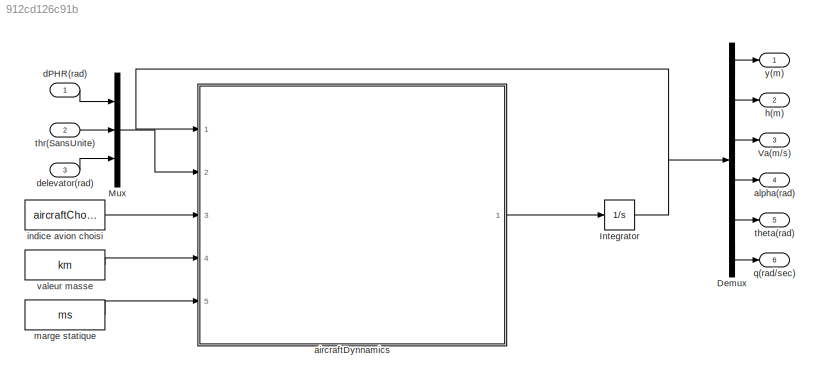
MODEL slx_912cd126c91b
KIND model
CONFIG AbsTol = auto
CONFIG EnableMultiTasking = on
CONFIG FixedStep = auto
CONFIG MaxStep = 1e-3
CONFIG MinStep = auto
CONFIG RelTol = 1e-3
CONFIG SampleTimeConstraint = Unconstrained
CONFIG Solver = ode45
CONFIG SolverName = ode45
CONFIG StartTime = 0.0
CONFIG StopTime = 100.0
BLOCK [Demux] Demux
  DisplayOption = bar
  Outputs = 6
  Ports = [1, 6]
BLOCK [Integrator] Integrator
  InitialCondition = xTrim
  Ports = [1, 1]
BLOCK [Mux] Mux
  DisplayOption = bar
  Inputs = 3
  Ports = [3, 1]
BLOCK [Outport] Va(m//s)
  IconDisplay = Port number
  Port = 3
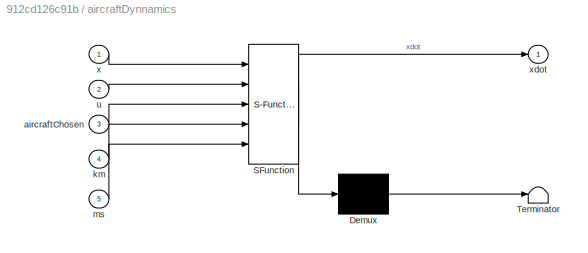
BLOCK [SubSystem] aircraftDynnamics
  ErrorFcn = Stateflow.Translate.translate
  PermitHierarchicalResolution = ExplicitOnly
  Ports = [5, 1]
  RequestExecContextInheritance = off
  SFBlockType = MATLAB Function
  TreatAsAtomicUnit = on
BLOCK [Demux] aircraftDynnamics/ Demux 
  Outputs = 1
  Ports = [1, 1]
BLOCK [S-Function] aircraftDynnamics/ SFunction 
  EnableBusSupport = on
  FunctionName = sf_sfun
  PortCounts = [5 2]
  Ports = [5, 2]
  SFcnIsStateOwnerBlock = off
  SFunctionDeploymentMode = off
  Tag = Stateflow S-Function acDynModel_ToLinearize_2015 2
BLOCK [Terminator] aircraftDynnamics/ Terminator 
BLOCK [Inport] aircraftDynnamics/aircraftChosen
  IconDisplay = Port number
  Port = 3
BLOCK [Inport] aircraftDynnamics/km
  IconDisplay = Port number
  Port = 4
BLOCK [Inport] aircraftDynnamics/ms
  IconDisplay = Port number
  Port = 5
BLOCK [Inport] aircraftDynnamics/u
  IconDisplay = Port number
  Port = 2
BLOCK [Inport] aircraftDynnamics/x
  IconDisplay = Port number
BLOCK [Outport] aircraftDynnamics/xdot
  IconDisplay = Port number
BLOCK [Outport] alpha(rad)
  IconDisplay = Port number
  Port = 4
BLOCK [Inport] dPHR(rad)
  IconDisplay = Port number
BLOCK [Inport] delevator(rad)
  IconDisplay = Port number
  Port = 3
BLOCK [Outport] h(m)
  IconDisplay = Port number
  Port = 2
BLOCK [Constant] indice avion choisi
  Value = aircraftChosen
BLOCK [Constant] marge statique
  Value = ms
BLOCK [Outport] q(rad//sec)
  IconDisplay = Port number
  Port = 6
BLOCK [Outport] theta(rad)
  IconDisplay = Port number
  Port = 5
BLOCK [Inport] thr(SansUnite)
  IconDisplay = Port number
  Port = 2
BLOCK [Constant] valeur masse
  Value = km
BLOCK [Outport] y(m)
  IconDisplay = Port number
LINE Demux:1 -> y(m):1
LINE Demux:2 -> h(m):1
LINE Demux:3 -> Va(m//s):1
LINE Demux:4 -> alpha(rad):1
LINE Demux:5 -> theta(rad):1
LINE Demux:6 -> q(rad//sec):1
NET Integrator:1 -> Demux:1, aircraftDynnamics:1
LINE Mux:1 -> aircraftDynnamics:2
LINE aircraftDynnamics:1 -> Integrator:1
LINE dPHR(rad):1 -> Mux:1
LINE delevator(rad):1 -> Mux:3
LINE indice avion choisi:1 -> aircraftDynnamics:3
LINE marge statique:1 -> aircraftDynnamics:5
LINE thr(SansUnite):1 -> Mux:2
LINE valeur masse:1 -> aircraftDynnamics:4
note: NET lines group one-source signal fan-out (src -> all destinations, sorted); 1:1 wires keep LINE
CHART aircraftDynnamics states=1 transitions=1
  STATE_LABEL 'eML_blk_kernel()'
  STATE_LABEL 'SCRIPT:\nfunction xdot = aircraftDynamics(x,u, aircraftChosen,km,ms)\n    TOTAL_SV = 6;\n    xIn = zeros(TOTAL_SV,1);\n    xIn = x;\n    \n\tTOTAL_CMD = 3;\n    uIn = zeros(TOTAL_CMD,1);\n    uIn = u;\n    \n    xdot = utAcDynamicsFunction(xIn,uIn, aircraftChosen,km,ms);\nend %aircraftDynamics\n\n'
